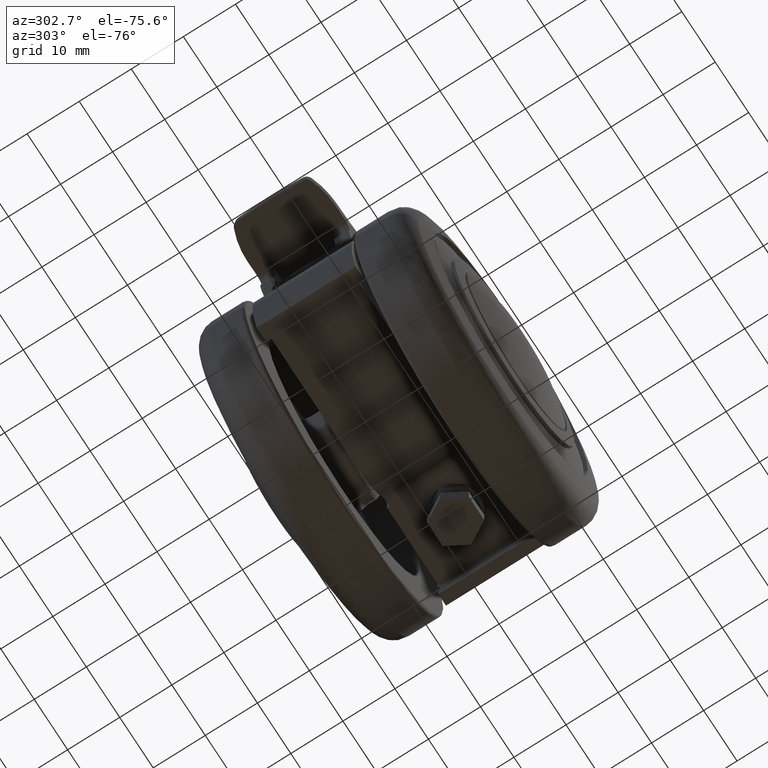
[diagram: clean part render]
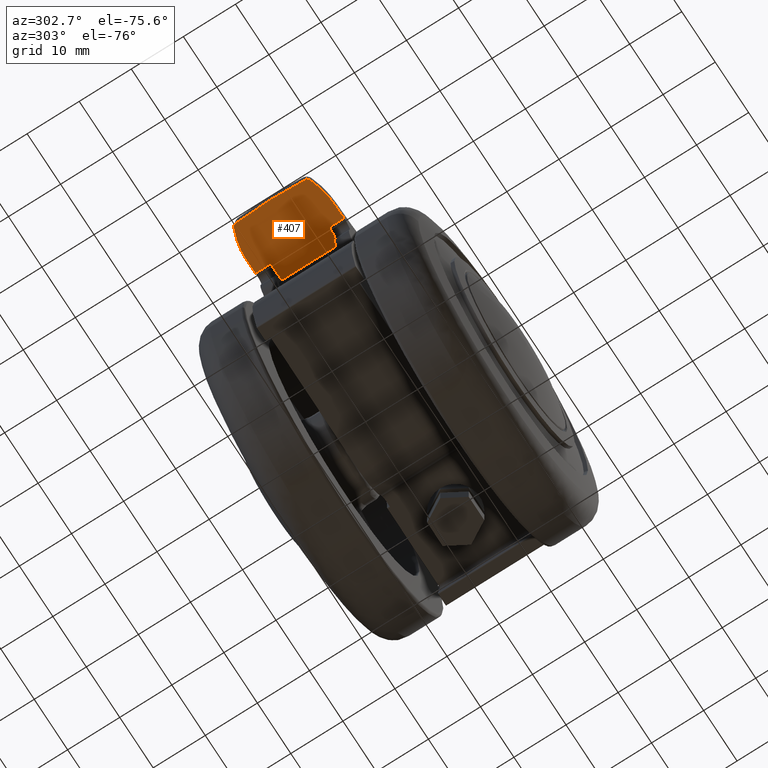
[diagram: same view with one face highlighted and labeled with its STEP entity id]
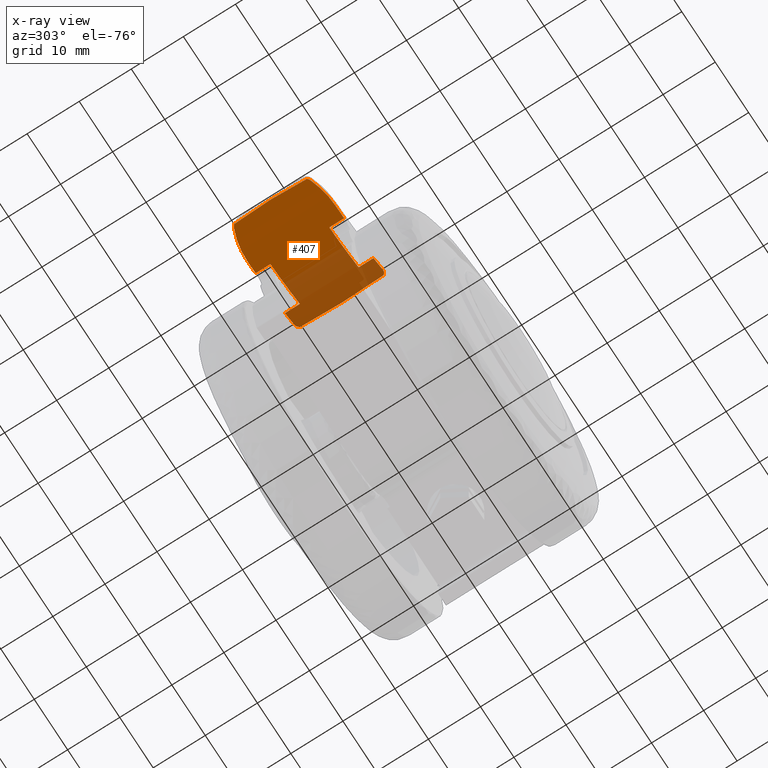
[diagram: x-ray of the same camera — body ghosted, the highlighted face saturated]
A machine part, auxiliary view. The second image highlights one B-rep face of the part: STEP entity #407.
The next image is the same camera in x-ray: the body ghosted, the highlighted face saturated — about 36% of this face is hidden behind the body in this view.
In plain terms, the highlighted cylindrical surface (partial cylindrical patch) has radius 29 mm, axis along (0, 1, 0).
Its self-contained STEP definition (entity closure, byte-faithful):
#407=ADVANCED_FACE('',(#2560),#2559,.T.);
#2559=CYLINDRICAL_SURFACE('',#5757,2.90000000000E+01);
#2560=FACE_OUTER_BOUND('',#5758,.T.);
#5754=CARTESIAN_POINT('',(0.00000000000E+00,2.60100688917E+01,-2.34195712226E+01));
#5755=DIRECTION('',(1.00000000000E+00,-0.00000000000E+00,-0.00000000000E+00));
#5756=DIRECTION('',(-0.00000000000E+00,-0.00000000000E+00,-1.00000000000E+00));
#5757=AXIS2_PLACEMENT_3D('',#5754,#5755,#5756);
#5758=EDGE_LOOP('',(#6886,#6887,#6888,#6889,#6890,#6891,#6892,#6893,#6894,#6895,#6896,#6897,#6898,#6899,#6900,#6901,#6902,#6903,#6904,#6905,#6906));
#6886=ORIENTED_EDGE('',*,*,#7422,.T.);
#6887=ORIENTED_EDGE('',*,*,#7410,.T.);
#6888=ORIENTED_EDGE('',*,*,#7442,.T.);
#6889=ORIENTED_EDGE('',*,*,#7495,.F.);
#6890=ORIENTED_EDGE('',*,*,#7449,.T.);
#6891=ORIENTED_EDGE('',*,*,#7459,.F.);
#6892=ORIENTED_EDGE('',*,*,#7455,.T.);
#6893=ORIENTED_EDGE('',*,*,#7494,.F.);
#6894=ORIENTED_EDGE('',*,*,#7390,.T.);
#6895=ORIENTED_EDGE('',*,*,#7437,.T.);
#6896=ORIENTED_EDGE('',*,*,#7441,.T.);
#6897=ORIENTED_EDGE('',*,*,#7395,.T.);
#6898=ORIENTED_EDGE('',*,*,#7488,.T.);
#6899=ORIENTED_EDGE('',*,*,#7386,.T.);
#6900=ORIENTED_EDGE('',*,*,#7477,.T.);
#6901=ORIENTED_EDGE('',*,*,#7473,.T.);
#6902=ORIENTED_EDGE('',*,*,#7490,.T.);
#6903=ORIENTED_EDGE('',*,*,#7446,.T.);
#6904=ORIENTED_EDGE('',*,*,#7402,.T.);
#6905=ORIENTED_EDGE('',*,*,#7427,.T.);
#6906=ORIENTED_EDGE('',*,*,#7426,.T.);
#7386=EDGE_CURVE('',#10482,#10496,#10503,.T.);
#7390=EDGE_CURVE('',#10531,#10524,#10532,.T.);
#7395=EDGE_CURVE('',#10566,#10559,#10567,.T.);
#7402=EDGE_CURVE('',#10615,#10608,#10616,.T.);
#7410=EDGE_CURVE('',#10636,#10664,#10671,.T.);
#7422=EDGE_CURVE('',#10752,#10636,#10753,.T.);
#7426=EDGE_CURVE('',#10765,#10752,#10779,.T.);
#7427=EDGE_CURVE('',#10608,#10765,#10785,.T.);
#7437=EDGE_CURVE('',#10524,#10849,#10850,.T.);
#7441=EDGE_CURVE('',#10849,#10566,#10875,.T.);
#7442=EDGE_CURVE('',#10664,#10881,#10882,.T.);
#7446=EDGE_CURVE('',#10908,#10615,#10909,.T.);
#7449=EDGE_CURVE('',#10929,#10921,#10930,.T.);
#7455=EDGE_CURVE('',#10950,#10964,#10971,.T.);
#7459=EDGE_CURVE('',#10950,#10921,#10997,.T.);
#7473=EDGE_CURVE('',#11069,#11083,#11090,.T.);
#7477=EDGE_CURVE('',#10496,#11069,#11116,.T.);
#7488=EDGE_CURVE('',#10559,#10482,#11187,.T.);
#7490=EDGE_CURVE('',#11083,#10908,#11199,.T.);
#7494=EDGE_CURVE('',#10531,#10964,#11225,.T.);
#7495=EDGE_CURVE('',#10929,#10881,#11231,.T.);
#10482=VERTEX_POINT('',#13685);
#10496=VERTEX_POINT('',#13694);
#10503=LINE('',#13699,#13700);
#10524=VERTEX_POINT('',#13714);
#10531=VERTEX_POINT('',#13721);
#10532=(BOUNDED_CURVE() B_SPLINE_CURVE(3,(#13722,#13723,#13724,#13725,#13726,#13727,#13728,#13729),.UNSPECIFIED.,.F.,.F.) B_SPLINE_CURVE_WITH_KNOTS((4,2,2,4),(2.16840434497E-19,3.20565005725E-04,6.41130011450E-04,1.28226002290E-03),.UNSPECIFIED.) CURVE() GEOMETRIC_REPRESENTATION_ITEM() RATIONAL_B_SPLINE_CURVE((1.00000000000E+00,1.00000000000E+00,1.00000000000E+00,1.00000000000E+00,1.00000000000E+00,1.00000000000E+00,1.00000000000E+00,1.00000000000E+00)) REPRESENTATION_ITEM('') );
#10559=VERTEX_POINT('',#13752);
#10566=VERTEX_POINT('',#13756);
#10567=(BOUNDED_CURVE() B_SPLINE_CURVE(3,(#13757,#13758,#13759,#13760,#13761,#13762,#13763,#13764),.UNSPECIFIED.,.F.,.F.) B_SPLINE_CURVE_WITH_KNOTS((4,2,2,4),(6.45091384617E-15,3.20568546839E-04,6.41137093671E-04,1.28227418734E-03),.UNSPECIFIED.) CURVE() GEOMETRIC_REPRESENTATION_ITEM() RATIONAL_B_SPLINE_CURVE((1.00000000000E+00,1.00000000000E+00,1.00000000000E+00,1.00000000000E+00,1.00000000000E+00,1.00000000000E+00,1.00000000000E+00,1.00000000000E+00)) REPRESENTATION_ITEM('') );
#10608=VERTEX_POINT('',#13794);
#10615=VERTEX_POINT('',#13801);
#10616=(BOUNDED_CURVE() B_SPLINE_CURVE(3,(#13802,#13803,#13804,#13805,#13806,#13807),.UNSPECIFIED.,.F.,.F.) B_SPLINE_CURVE_WITH_KNOTS((4,2,4),(0.00000000000E+00,3.60285280877E-04,7.20570561754E-04),.UNSPECIFIED.) CURVE() GEOMETRIC_REPRESENTATION_ITEM() RATIONAL_B_SPLINE_CURVE((1.00000000000E+00,1.00000000000E+00,1.00000000000E+00,1.00000000000E+00,1.00000000000E+00,1.00000000000E+00)) REPRESENTATION_ITEM('') );
#10636=VERTEX_POINT('',#13819);
#10664=VERTEX_POINT('',#13844);
#10671=(BOUNDED_CURVE() B_SPLINE_CURVE(3,(#13848,#13849,#13850,#13851,#13852,#13853),.UNSPECIFIED.,.F.,.F.) B_SPLINE_CURVE_WITH_KNOTS((4,2,4),(1.95108198334E-17,3.60286700072E-04,7.20573400144E-04),.UNSPECIFIED.) CURVE() GEOMETRIC_REPRESENTATION_ITEM() RATIONAL_B_SPLINE_CURVE((1.00000000000E+00,1.00000000000E+00,1.00000000000E+00,1.00000000000E+00,1.00000000000E+00,1.00000000000E+00)) REPRESENTATION_ITEM('') );
#10752=VERTEX_POINT('',#13905);
#10753=(BOUNDED_CURVE() B_SPLINE_CURVE(3,(#13906,#13907,#13908,#13909),.UNSPECIFIED.,.F.,.F.) B_SPLINE_CURVE_WITH_KNOTS((4,4),(0.00000000000E+00,6.97058020741E-03),.UNSPECIFIED.) CURVE() GEOMETRIC_REPRESENTATION_ITEM() RATIONAL_B_SPLINE_CURVE((1.00000000000E+00,1.00000000000E+00,1.00000000000E+00,1.00000000000E+00)) REPRESENTATION_ITEM('') );
#10765=VERTEX_POINT('',#13914);
#10779=CIRCLE('',#13927,9.83309138161E+01);
#10785=(BOUNDED_CURVE() B_SPLINE_CURVE(3,(#13928,#13929,#13930,#13931),.UNSPECIFIED.,.F.,.F.) B_SPLINE_CURVE_WITH_KNOTS((4,4),(1.77730202294E-04,6.58588083682E-03),.UNSPECIFIED.) CURVE() GEOMETRIC_REPRESENTATION_ITEM() RATIONAL_B_SPLINE_CURVE((1.00000000000E+00,1.00000000000E+00,1.00000000000E+00,1.00000000000E+00)) REPRESENTATION_ITEM('') );
#10849=VERTEX_POINT('',#13972);
#10850=(BOUNDED_CURVE() B_SPLINE_CURVE(3,(#13973,#13974,#13975,#13976),.UNSPECIFIED.,.F.,.F.) B_SPLINE_CURVE_WITH_KNOTS((4,4),(5.23196063324E-04,8.50994104420E-03),.UNSPECIFIED.) CURVE() GEOMETRIC_REPRESENTATION_ITEM() RATIONAL_B_SPLINE_CURVE((1.00000000000E+00,1.00000000000E+00,1.00000000000E+00,1.00000000000E+00)) REPRESENTATION_ITEM('') );
#10875=(BOUNDED_CURVE() B_SPLINE_CURVE(3,(#13990,#13991,#13992,#13993),.UNSPECIFIED.,.F.,.F.) B_SPLINE_CURVE_WITH_KNOTS((4,4),(0.00000000000E+00,7.98676529461E-03),.UNSPECIFIED.) CURVE() GEOMETRIC_REPRESENTATION_ITEM() RATIONAL_B_SPLINE_CURVE((1.00000000000E+00,1.00000000000E+00,1.00000000000E+00,1.00000000000E+00)) REPRESENTATION_ITEM('') );
#10881=VERTEX_POINT('',#13994);
#10882=(BOUNDED_CURVE() B_SPLINE_CURVE(3,(#13995,#13996,#13997,#13998,#13999,#14000,#14001,#14002),.UNSPECIFIED.,.F.,.F.) B_SPLINE_CURVE_WITH_KNOTS((4,2,2,4),(1.21860636121E-03,4.12896167089E-03,5.58413932573E-03,7.03931698057E-03),.UNSPECIFIED.) CURVE() GEOMETRIC_REPRESENTATION_ITEM() RATIONAL_B_SPLINE_CURVE((1.00000000000E+00,1.00000000000E+00,1.00000000000E+00,1.00000000000E+00,1.00000000000E+00,1.00000000000E+00,1.00000000000E+00,1.00000000000E+00)) REPRESENTATION_ITEM('') );
#10908=VERTEX_POINT('',#14024);
#10909=(BOUNDED_CURVE() B_SPLINE_CURVE(3,(#14025,#14026,#14027,#14028,#14029,#14030,#14031,#14032),.UNSPECIFIED.,.F.,.F.) B_SPLINE_CURVE_WITH_KNOTS((4,2,2,4),(0.00000000000E+00,2.90330945440E-03,4.35496418160E-03,5.80661890880E-03),.UNSPECIFIED.) CURVE() GEOMETRIC_REPRESENTATION_ITEM() RATIONAL_B_SPLINE_CURVE((1.00000000000E+00,1.00000000000E+00,1.00000000000E+00,1.00000000000E+00,1.00000000000E+00,1.00000000000E+00,1.00000000000E+00,1.00000000000E+00)) REPRESENTATION_ITEM('') );
#10921=VERTEX_POINT('',#14036);
#10929=VERTEX_POINT('',#14042);
#10930=LINE('',#14043,#14044);
#10950=VERTEX_POINT('',#14055);
#10964=VERTEX_POINT('',#14064);
#10971=LINE('',#14069,#14070);
#10997=CIRCLE('',#14087,2.90000000000E+01);
#11069=VERTEX_POINT('',#14130);
#11083=VERTEX_POINT('',#14139);
#11090=LINE('',#14144,#14145);
#11116=CIRCLE('',#14162,2.90000000000E+01);
#11187=CIRCLE('',#14207,2.90000000000E+01);
#11199=CIRCLE('',#14215,2.90000000000E+01);
#11225=CIRCLE('',#14233,2.90000000000E+01);
#11231=CIRCLE('',#14237,2.90000000000E+01);
#13685=CARTESIAN_POINT('',(-8.50000000000E+00,8.21566477035E+00,-5.20680813510E-01));
#13694=CARTESIAN_POINT('',(-5.65000000000E+00,8.21566477035E+00,-5.20680813510E-01));
#13699=CARTESIAN_POINT('',(-8.50000000000E+00,8.21566477035E+00,-5.20680813510E-01));
#13700=VECTOR('',#13701,2.85000000000E+00);
#13701=DIRECTION('',(1.00000000000E+00,0.00000000000E+00,0.00000000000E+00));
#13714=CARTESIAN_POINT('',(7.97854786522E+00,1.19104955127E+01,1.92213413699E+00));
#13721=CARTESIAN_POINT('',(8.50000000000E+00,1.09280567192E+01,1.35002523821E+00));
#13722=CARTESIAN_POINT('',(8.50000000000E+00,1.09280567192E+01,1.35002523821E+00));
#13723=CARTESIAN_POINT('',(8.50000000000E+00,1.10206387742E+01,1.40639772221E+00));
#13724=CARTESIAN_POINT('',(8.48838989860E+00,1.11118451493E+01,1.46122163194E+00));
#13725=CARTESIAN_POINT('',(8.44284804805E+00,1.12915718634E+01,1.56796104806E+00));
#13726=CARTESIAN_POINT('',(8.40826179942E+00,1.13810257794E+01,1.62040858077E+00));
#13727=CARTESIAN_POINT('',(8.27432201642E+00,1.16338730753E+01,1.76699181373E+00));
#13728=CARTESIAN_POINT('',(8.14282730625E+00,1.17868887005E+01,1.85336199659E+00));
#13729=CARTESIAN_POINT('',(7.97854786522E+00,1.19104955127E+01,1.92213413699E+00));
#13752=CARTESIAN_POINT('',(-8.50000000000E+00,1.09280567192E+01,1.35002523821E+00));
#13756=CARTESIAN_POINT('',(-7.97854786526E+00,1.19104955127E+01,1.92213413699E+00));
#13757=CARTESIAN_POINT('',(-7.97854786526E+00,1.19104955127E+01,1.92213413699E+00));
#13758=CARTESIAN_POINT('',(-8.06068818305E+00,1.18486916572E+01,1.88774781675E+00));
#13759=CARTESIAN_POINT('',(-8.13375832563E+00,1.17804540335E+01,1.84948815586E+00));
#13760=CARTESIAN_POINT('',(-8.26246599119E+00,1.16317975719E+01,1.76519827678E+00));
#13761=CARTESIAN_POINT('',(-8.31849301574E+00,1.15503430382E+01,1.71856342688E+00));
#13762=CARTESIAN_POINT('',(-8.45262626286E+00,1.12975647840E+01,1.57203065738E+00));
#13763=CARTESIAN_POINT('',(-8.50000000000E+00,1.11132226407E+01,1.46277130922E+00));
#13764=CARTESIAN_POINT('',(-8.50000000000E+00,1.09280567192E+01,1.35002523821E+00));
#13794=CARTESIAN_POINT('',(-6.96505889984E+00,-1.80623598874E+00,-1.52187674328E+01));
#13801=CARTESIAN_POINT('',(-7.38801338707E+00,-1.63636464861E+00,-1.46631614274E+01));
#13802=CARTESIAN_POINT('',(-7.38801338707E+00,-1.63636464861E+00,-1.46631614274E+01));
#13803=CARTESIAN_POINT('',(-7.34198327807E+00,-1.67042249728E+00,-1.47706915764E+01));
#13804=CARTESIAN_POINT('',(-7.28335785436E+00,-1.70149177213E+00,-1.48709518168E+01));
#13805=CARTESIAN_POINT('',(-7.14178773751E+00,-1.75829325520E+00,-1.50573016832E+01));
#13806=CARTESIAN_POINT('',(-7.05825228469E+00,-1.78404828149E+00,-1.51435089526E+01));
#13807=CARTESIAN_POINT('',(-6.96505889984E+00,-1.80623598874E+00,-1.52187674328E+01));
#13819=CARTESIAN_POINT('',(6.96505889984E+00,-1.80623598874E+00,-1.52187674328E+01));
#13844=CARTESIAN_POINT('',(7.38801338707E+00,-1.63636464861E+00,-1.46631614274E+01));
#13848=CARTESIAN_POINT('',(6.96505889984E+00,-1.80623598874E+00,-1.52187674328E+01));
#13849=CARTESIAN_POINT('',(7.05825186874E+00,-1.78404838052E+00,-1.51435092885E+01));
#13850=CARTESIAN_POINT('',(7.14012789223E+00,-1.75885042462E+00,-1.50591534792E+01));
#13851=CARTESIAN_POINT('',(7.28202768575E+00,-1.70213199991E+00,-1.48730288467E+01));
#13852=CARTESIAN_POINT('',(7.34198362149E+00,-1.67042224318E+00,-1.47706907741E+01));
#13853=CARTESIAN_POINT('',(7.38801338707E+00,-1.63636464861E+00,-1.46631614274E+01));
#13905=CARTESIAN_POINT('',(6.08811628208E-15,-1.87505960127E+00,-1.54559282792E+01));
#13906=CARTESIAN_POINT('',(6.08811628208E-15,-1.87505960127E+00,-1.54559282792E+01));
#13907=CARTESIAN_POINT('',(2.32389311547E+00,-1.87505960127E+00,-1.54559282792E+01));
#13908=CARTESIAN_POINT('',(4.64707333989E+00,-1.85276810386E+00,-1.53765997056E+01));
#13909=CARTESIAN_POINT('',(6.96505889984E+00,-1.80623598874E+00,-1.52187674328E+01));
#13914=CARTESIAN_POINT('',(-5.62411121578E-01,-1.87461787966E+00,-1.54543817294E+01));
#13924=CARTESIAN_POINT('',(9.13855286833E-07,2.51326769839E+01,7.90932693719E+01));
#13925=DIRECTION('',(1.31084921563E-12,-9.61540923088E-01,2.74661706882E-01));
#13926=DIRECTION('',(5.71958516002E-03,2.74657214252E-01,9.61525195200E-01));
#13927=AXIS2_PLACEMENT_3D('',#13924,#13925,#13926);
#13928=CARTESIAN_POINT('',(-6.96505889984E+00,-1.80623598874E+00,-1.52187674328E+01));
#13929=CARTESIAN_POINT('',(-4.83411962561E+00,-1.84901326627E+00,-1.53638636727E+01));
#13930=CARTESIAN_POINT('',(-2.69874075661E+00,-1.87126175414E+00,-1.54426325413E+01));
#13931=CARTESIAN_POINT('',(-5.62411121578E-01,-1.87461787966E+00,-1.54543817294E+01));
#13972=CARTESIAN_POINT('',(1.21603285419E-14,1.21946317992E+01,2.07814824298E+00));
#13973=CARTESIAN_POINT('',(7.97854786522E+00,1.19104955127E+01,1.92213413699E+00));
#13974=CARTESIAN_POINT('',(5.32471491094E+00,1.20992065342E+01,2.02712884262E+00));
#13975=CARTESIAN_POINT('',(2.66287472372E+00,1.21946317992E+01,2.07814824298E+00));
#13976=CARTESIAN_POINT('',(1.21603285419E-14,1.21946317992E+01,2.07814824298E+00));
#13990=CARTESIAN_POINT('',(1.21603285419E-14,1.21946317992E+01,2.07814824298E+00));
#13991=CARTESIAN_POINT('',(-2.66287472373E+00,1.21946317992E+01,2.07814824298E+00));
#13992=CARTESIAN_POINT('',(-5.32471491096E+00,1.20992065342E+01,2.02712884262E+00));
#13993=CARTESIAN_POINT('',(-7.97854786526E+00,1.19104955127E+01,1.92213413699E+00));
#13994=CARTESIAN_POINT('',(8.50000000000E+00,6.05884277269E-01,-9.43288455003E+00));
#13995=CARTESIAN_POINT('',(7.38801338707E+00,-1.63636464861E+00,-1.46631614274E+01));
#13996=CARTESIAN_POINT('',(7.75570139169E+00,-1.36431092789E+00,-1.38042117796E+01));
#13997=CARTESIAN_POINT('',(8.03358990733E+00,-1.04395116825E+00,-1.29312983613E+01));
#13998=CARTESIAN_POINT('',(8.31457718855E+00,-4.78554827579E-01,-1.16050132235E+01));
#13999=CARTESIAN_POINT('',(8.38495471252E+00,-2.75929007571E-01,-1.11606330209E+01));
#14000=CARTESIAN_POINT('',(8.47733683297E+00,1.48721424082E-01,-1.02884646983E+01));
#14001=CARTESIAN_POINT('',(8.50000000000E+00,3.71882502544E-01,-9.85790474419E+00));
#14002=CARTESIAN_POINT('',(8.50000000000E+00,6.05884277269E-01,-9.43288455003E+00));
#14024=CARTESIAN_POINT('',(-8.50000000000E+00,6.05884277269E-01,-9.43288455003E+00));
#14025=CARTESIAN_POINT('',(-8.50000000000E+00,6.05884277269E-01,-9.43288455003E+00));
#14026=CARTESIAN_POINT('',(-8.50000000000E+00,1.32359494256E-01,-1.02929532202E+01));
#14027=CARTESIAN_POINT('',(-8.40780024994E+00,-2.88977142290E-01,-1.11613197269E+01));
#14028=CARTESIAN_POINT('',(-8.13097484157E+00,-8.48974748550E-01,-1.24734343361E+01));
#14029=CARTESIAN_POINT('',(-8.01546374546E+00,-1.02360472310E+00,-1.29123910215E+01));
#14030=CARTESIAN_POINT('',(-7.73602158024E+00,-1.34950287419E+00,-1.37928283842E+01));
#14031=CARTESIAN_POINT('',(-7.57291429801E+00,-1.49955577763E+00,-1.42312175774E+01));
#14032=CARTESIAN_POINT('',(-7.38801338707E+00,-1.63636464861E+00,-1.46631614274E+01));
#14036=CARTESIAN_POINT('',(5.65000000000E+00,1.91527260424E+00,-7.28139313873E+00));
#14042=CARTESIAN_POINT('',(8.50000000000E+00,1.91527260424E+00,-7.28139313873E+00));
#14043=CARTESIAN_POINT('',(8.50000000000E+00,1.91527260424E+00,-7.28139313873E+00));
#14044=VECTOR('',#14045,2.85000000000E+00);
#14045=DIRECTION('',(-1.00000000000E+00,0.00000000000E+00,0.00000000000E+00));
#14055=CARTESIAN_POINT('',(5.65000000000E+00,8.21566477035E+00,-5.20680813510E-01));
#14064=CARTESIAN_POINT('',(8.50000000000E+00,8.21566477035E+00,-5.20680813510E-01));
#14069=CARTESIAN_POINT('',(5.65000000000E+00,8.21566477035E+00,-5.20680813510E-01));
#14070=VECTOR('',#14071,2.85000000000E+00);
#14071=DIRECTION('',(1.00000000000E+00,0.00000000000E+00,0.00000000000E+00));
#14084=CARTESIAN_POINT('',(5.65000000000E+00,2.60100688917E+01,-2.34195712226E+01));
#14085=DIRECTION('',(1.00000000000E+00,0.00000000000E+00,0.00000000000E+00));
#14086=DIRECTION('',(-0.00000000000E+00,6.13600142116E-01,-7.89616910657E-01));
#14087=AXIS2_PLACEMENT_3D('',#14084,#14085,#14086);
#14130=CARTESIAN_POINT('',(-5.65000000000E+00,1.91527260424E+00,-7.28139313873E+00));
#14139=CARTESIAN_POINT('',(-8.50000000000E+00,1.91527260424E+00,-7.28139313873E+00));
#14144=CARTESIAN_POINT('',(-5.65000000000E+00,1.91527260424E+00,-7.28139313873E+00));
#14145=VECTOR('',#14146,2.85000000000E+00);
#14146=DIRECTION('',(-1.00000000000E+00,0.00000000000E+00,0.00000000000E+00));
#14159=CARTESIAN_POINT('',(-5.65000000000E+00,2.60100688917E+01,-2.34195712226E+01));
#14160=DIRECTION('',(1.00000000000E+00,0.00000000000E+00,0.00000000000E+00));
#14161=DIRECTION('',(-0.00000000000E+00,6.13600142116E-01,-7.89616910657E-01));
#14162=AXIS2_PLACEMENT_3D('',#14159,#14160,#14161);
#14204=CARTESIAN_POINT('',(-8.50000000000E+00,2.60100688917E+01,-2.34195712226E+01));
#14205=DIRECTION('',(1.00000000000E+00,0.00000000000E+00,0.00000000000E+00));
#14206=DIRECTION('',(-0.00000000000E+00,5.20069385257E-01,-8.54124015889E-01));
#14207=AXIS2_PLACEMENT_3D('',#14204,#14205,#14206);
#14212=CARTESIAN_POINT('',(-8.50000000000E+00,2.60100688917E+01,-2.34195712226E+01));
#14213=DIRECTION('',(1.00000000000E+00,0.00000000000E+00,0.00000000000E+00));
#14214=DIRECTION('',(-0.00000000000E+00,8.30855044396E-01,-5.56488899442E-01));
#14215=AXIS2_PLACEMENT_3D('',#14212,#14213,#14214);
#14230=CARTESIAN_POINT('',(8.50000000000E+00,2.60100688917E+01,-2.34195712226E+01));
#14231=DIRECTION('',(1.00000000000E+00,0.00000000000E+00,0.00000000000E+00));
#14232=DIRECTION('',(-0.00000000000E+00,5.20069385257E-01,-8.54124015889E-01));
#14233=AXIS2_PLACEMENT_3D('',#14230,#14231,#14232);
#14234=CARTESIAN_POINT('',(8.50000000000E+00,2.60100688917E+01,-2.34195712226E+01));
#14235=DIRECTION('',(1.00000000000E+00,0.00000000000E+00,0.00000000000E+00));
#14236=DIRECTION('',(-0.00000000000E+00,8.30855044396E-01,-5.56488899442E-01));
#14237=AXIS2_PLACEMENT_3D('',#14234,#14235,#14236);